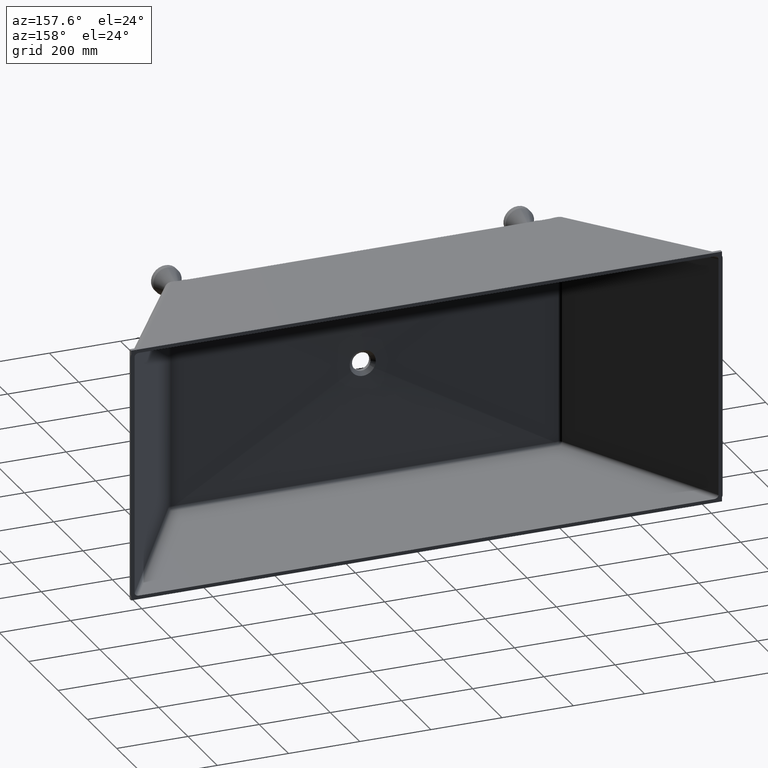
[diagram: clean part render]
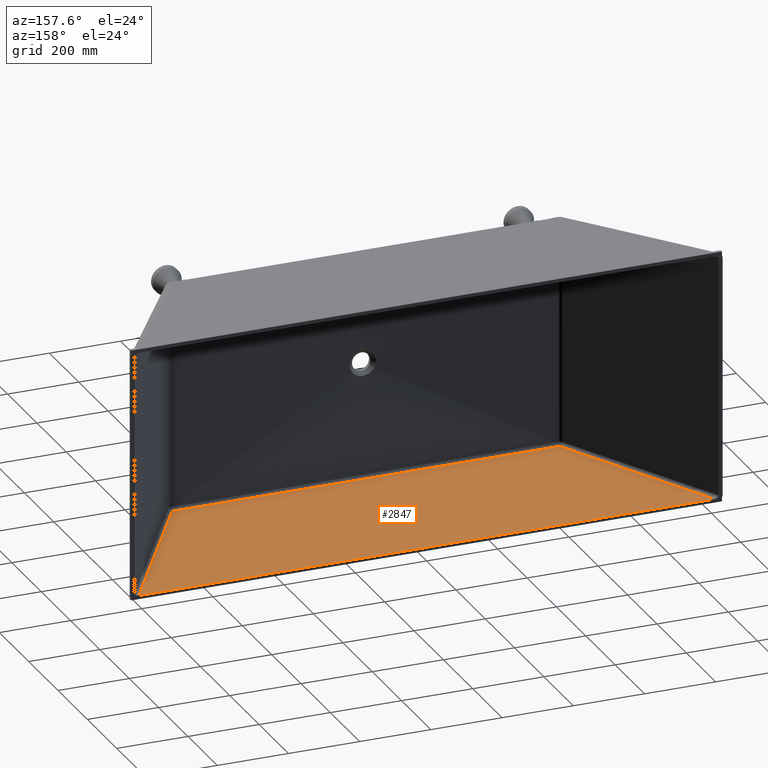
[diagram: same view with one face highlighted and labeled with its STEP entity id]
A machine part, auxiliary view. The second image highlights one B-rep face of the part: STEP entity #2847.
In plain terms, the highlighted planar face has unit normal (0, -0.059, -0.9983).
Its self-contained STEP definition (entity closure, byte-faithful):
#316 = DIRECTION ( 'NONE',  ( -1.000000000000000000, -0.0000000000000000000, -0.0000000000000000000 ) ) ;
#383 = CARTESIAN_POINT ( 'NONE',  ( -820.0000000000000000, 0.0000000000000000000, -345.0000000000000600 ) ) ;
#550 = AXIS2_PLACEMENT_3D ( 'NONE', #4908, #5096, #6272 ) ;
#744 = LINE ( 'NONE', #9388, #4544 ) ;
#793 = ORIENTED_EDGE ( 'NONE', *, *, #2700, .F. ) ;
#859 = CARTESIAN_POINT ( 'NONE',  ( -808.5130965234672000, 0.0000000000000000000, -345.0000000000000600 ) ) ;
#1464 = CARTESIAN_POINT ( 'NONE',  ( -544.4403956539533700, -413.7138980289050800, -320.5488239935635300 ) ) ;
#1561 = LINE ( 'NONE', #383, #7337 ) ;
#1628 = CARTESIAN_POINT ( 'NONE',  ( 338.2547336670230600, -736.7381018084290600, -301.4575589947736500 ) ) ;
#1693 = CARTESIAN_POINT ( 'NONE',  ( 457.8298401809004200, -413.9549493585469100, -320.5345774610787500 ) ) ;
#2296 = B_SPLINE_CURVE_WITH_KNOTS ( 'NONE', 3,
 ( #6661, #6299, #6385, #5335 ),
 .UNSPECIFIED., .F., .F.,
 ( 4, 4 ),
 ( 1.110223024625156500E-016, 0.01046005968632171500 ),
 .UNSPECIFIED. ) ;
#2531 = LINE ( 'NONE', #1628, #8666 ) ;
#2634 = EDGE_CURVE ( 'NONE', #6139, #3449, #3060, .T. ) ;
#2700 = EDGE_CURVE ( 'NONE', #4475, #6139, #2296, .T. ) ;
#2799 = CARTESIAN_POINT ( 'NONE',  ( -305.5234203781254800, -413.9610414853945600, -320.5342174063005700 ) ) ;
#2847 = ADVANCED_FACE ( 'NONE', ( #3985 ), #5130, .F. ) ;
#3060 = B_SPLINE_CURVE_WITH_KNOTS ( 'NONE', 3,
 ( #6462, #1693, #7159, #6303, #6195, #8950, #6406, #5872, #5573, #2799, #7169, #5368, #6063 ),
 .UNSPECIFIED., .F., .F.,
 ( 4, 3, 3, 3, 4 ),
 ( 0.0000000000000000000, 0.2284596298817016500, 0.5339830503645310900, 0.8395064708435551200, 1.067966100729054000 ),
 .UNSPECIFIED. ) ;
#3361 = B_SPLINE_CURVE_WITH_KNOTS ( 'NONE', 3,
 ( #4889, #6596, #4818, #4781 ),
 .UNSPECIFIED., .F., .F.,
 ( 4, 4 ),
 ( 0.0000000000000000000, 0.01046005968632971100 ),
 .UNSPECIFIED. ) ;
#3449 = VERTEX_POINT ( 'NONE', #9452 ) ;
#3985 = FACE_OUTER_BOUND ( 'NONE', #5901, .T. ) ;
#4040 = VERTEX_POINT ( 'NONE', #859 ) ;
#4417 = VERTEX_POINT ( 'NONE', #5913 ) ;
#4475 = VERTEX_POINT ( 'NONE', #5100 ) ;
#4536 = VERTEX_POINT ( 'NONE', #1464 ) ;
#4544 = VECTOR ( 'NONE', #9269, 1000.000000000000100 ) ;
#4781 = CARTESIAN_POINT ( 'NONE',  ( -544.4403956539533700, -413.7138980289050800, -320.5488239935635300 ) ) ;
#4818 = CARTESIAN_POINT ( 'NONE',  ( -540.9546142280046300, -413.7932016553578500, -320.5441370180049000 ) ) ;
#4889 = CARTESIAN_POINT ( 'NONE',  ( -533.9830500740979500, -413.9517518709719200, -320.5347664378858200 ) ) ;
#4908 = CARTESIAN_POINT ( 'NONE',  ( -820.0000000000000000, 0.0000000000000000000, -345.0000000000000600 ) ) ;
#5096 = DIRECTION ( 'NONE',  ( 0.0000000000000000000, -0.05899870326995154700, -0.9982580593275790500 ) ) ;
#5100 = CARTESIAN_POINT ( 'NONE',  ( 544.4403956539532600, -413.7138980289048500, -320.5488239935635300 ) ) ;
#5130 = PLANE ( 'NONE',  #550 ) ;
#5225 = EDGE_CURVE ( 'NONE', #4417, #4475, #2531, .T. ) ;
#5335 = CARTESIAN_POINT ( 'NONE',  ( 533.9830500741057900, -413.9517518709718600, -320.5347664378858200 ) ) ;
#5368 = CARTESIAN_POINT ( 'NONE',  ( -457.8298401796267300, -413.9549493585470300, -320.5345774610787500 ) ) ;
#5573 = CARTESIAN_POINT ( 'NONE',  ( -203.6822802984389400, -413.9647554334044300, -320.5339979058271600 ) ) ;
#5872 = CARTESIAN_POINT ( 'NONE',  ( -101.8411401476433700, -413.9673232672256500, -320.5338461425989200 ) ) ;
#5901 = EDGE_LOOP ( 'NONE', ( #8709, #793, #5961, #10044, #9600, #8973 ) ) ;
#5913 = CARTESIAN_POINT ( 'NONE',  ( 808.5130965234672000, 0.0000000000000000000, -345.0000000000000600 ) ) ;
#5961 = ORIENTED_EDGE ( 'NONE', *, *, #5225, .F. ) ;
#6063 = CARTESIAN_POINT ( 'NONE',  ( -533.9830500740979500, -413.9517518709719200, -320.5347664378858200 ) ) ;
#6139 = VERTEX_POINT ( 'NONE', #7890 ) ;
#6195 = CARTESIAN_POINT ( 'NONE',  ( 203.6822803009757500, -413.9647554334043200, -320.5339979058271600 ) ) ;
#6272 = DIRECTION ( 'NONE',  ( 1.000000000000000000, 0.0000000000000000000, 0.0000000000000000000 ) ) ;
#6299 = CARTESIAN_POINT ( 'NONE',  ( 540.9546142280070200, -413.7932016553577300, -320.5441370180049000 ) ) ;
#6303 = CARTESIAN_POINT ( 'NONE',  ( 305.5234203819307500, -413.9610414853943300, -320.5342174063005700 ) ) ;
#6385 = CARTESIAN_POINT ( 'NONE',  ( 537.4688323794280200, -413.8724867722147600, -320.5394511363939500 ) ) ;
#6406 = CARTESIAN_POINT ( 'NONE',  ( -5.884418681703333300E-014, -413.9673232672256500, -320.5338461425989200 ) ) ;
#6462 = CARTESIAN_POINT ( 'NONE',  ( 533.9830500741057900, -413.9517518709718600, -320.5347664378858200 ) ) ;
#6596 = CARTESIAN_POINT ( 'NONE',  ( -537.4688323794229100, -413.8724867722148700, -320.5394511363939500 ) ) ;
#6661 = CARTESIAN_POINT ( 'NONE',  ( 544.4403956539532600, -413.7138980289048500, -320.5488239935635300 ) ) ;
#7022 = EDGE_CURVE ( 'NONE', #3449, #4536, #3361, .T. ) ;
#7159 = CARTESIAN_POINT ( 'NONE',  ( 381.6766302916823300, -413.9582643261620700, -320.5343815410069500 ) ) ;
#7169 = CARTESIAN_POINT ( 'NONE',  ( -381.6766302891428500, -413.9582643261622400, -320.5343815410069500 ) ) ;
#7337 = VECTOR ( 'NONE', #316, 1000.000000000000000 ) ;
#7890 = CARTESIAN_POINT ( 'NONE',  ( 533.9830500741057900, -413.9517518709718600, -320.5347664378858200 ) ) ;
#8666 = VECTOR ( 'NONE', #9246, 999.9999999999998900 ) ;
#8709 = ORIENTED_EDGE ( 'NONE', *, *, #2634, .F. ) ;
#8950 = CARTESIAN_POINT ( 'NONE',  ( 101.8411401489117300, -413.9673232672256500, -320.5338461425989200 ) ) ;
#8973 = ORIENTED_EDGE ( 'NONE', *, *, #7022, .F. ) ;
#9246 = DIRECTION ( 'NONE',  ( -0.5373690334093427200, -0.8418781523413040300, 0.04975639198234663200 ) ) ;
#9269 = DIRECTION ( 'NONE',  ( -0.5373690334093427200, 0.8418781523413038100, -0.04975639198234662500 ) ) ;
#9359 = EDGE_CURVE ( 'NONE', #4417, #4040, #1561, .T. ) ;
#9388 = CARTESIAN_POINT ( 'NONE',  ( -811.8301176973809600, 5.196666505798314800, -345.3071315901772200 ) ) ;
#9452 = CARTESIAN_POINT ( 'NONE',  ( -533.9830500740979500, -413.9517518709719200, -320.5347664378858200 ) ) ;
#9600 = ORIENTED_EDGE ( 'NONE', *, *, #10203, .F. ) ;
#10044 = ORIENTED_EDGE ( 'NONE', *, *, #9359, .T. ) ;
#10203 = EDGE_CURVE ( 'NONE', #4536, #4040, #744, .T. ) ;